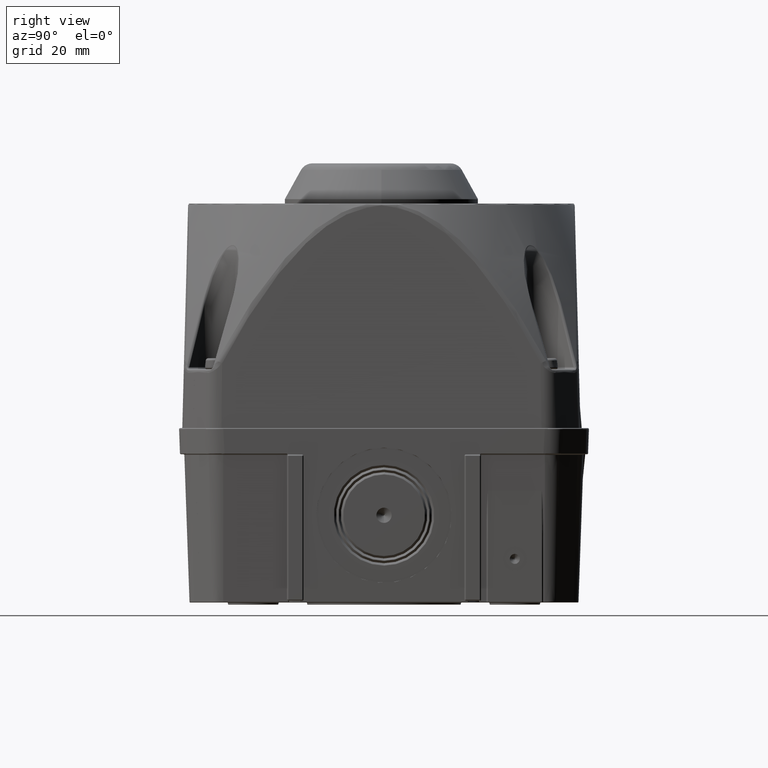
[diagram: clean part render]
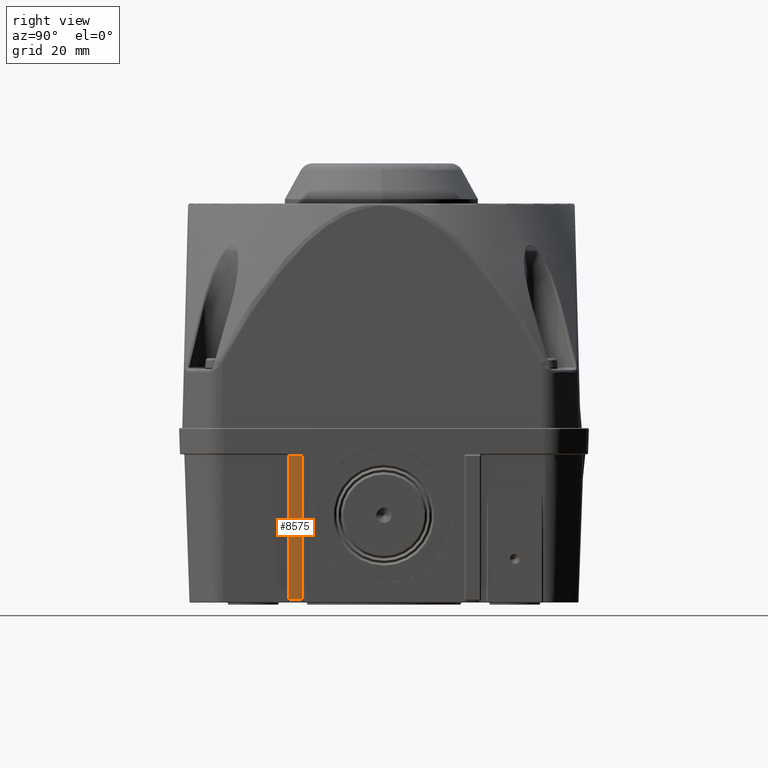
[diagram: same view with one face highlighted and labeled with its STEP entity id]
A machine part, right view. The second image highlights one B-rep face of the part: STEP entity #8575.
In plain terms, the highlighted planar face has unit normal (-1, 0, 0).
Its self-contained STEP definition (entity closure, byte-faithful):
#2738=PLANE('',#33538);
#5581=LINE('',#58940,#7272);
#5582=LINE('',#58943,#7273);
#5583=LINE('',#58945,#7274);
#5584=LINE('',#58947,#7275);
#7272=VECTOR('',#40125,1.);
#7273=VECTOR('',#40126,1.);
#7274=VECTOR('',#40127,1.);
#7275=VECTOR('',#40128,1.);
#8575=ADVANCED_FACE('',(#10680),#2738,.F.);
#10680=FACE_OUTER_BOUND('',#12769,.T.);
#12769=EDGE_LOOP('',(#18803,#18804,#18805,#18806));
#18803=ORIENTED_EDGE('',*,*,#28567,.T.);
#18804=ORIENTED_EDGE('',*,*,#28568,.T.);
#18805=ORIENTED_EDGE('',*,*,#28569,.T.);
#18806=ORIENTED_EDGE('',*,*,#28570,.T.);
#25096=VERTEX_POINT('',#58941);
#25097=VERTEX_POINT('',#58942);
#25098=VERTEX_POINT('',#58944);
#25099=VERTEX_POINT('',#58946);
#28567=EDGE_CURVE('',#25096,#25097,#5581,.T.);
#28568=EDGE_CURVE('',#25097,#25098,#5582,.T.);
#28569=EDGE_CURVE('',#25098,#25099,#5583,.T.);
#28570=EDGE_CURVE('',#25099,#25096,#5584,.T.);
#33538=AXIS2_PLACEMENT_3D('',#58948,#40129,#40130);
#40125=DIRECTION('',(0.,-1.,2.04085114820801E-016));
#40126=DIRECTION('',(0.,-2.04085114820801E-016,-1.));
#40127=DIRECTION('',(0.,1.,0.));
#40128=DIRECTION('',(0.,2.04085114820801E-016,1.));
#40129=DIRECTION('',(-1.,0.,0.));
#40130=DIRECTION('',(0.,-2.04697370165263E-016,-1.));
#58940=CARTESIAN_POINT('',(47.6,-18.,-86.4));
#58941=CARTESIAN_POINT('',(47.6,-18.2,-86.4));
#58942=CARTESIAN_POINT('',(47.6,-21.3,-86.4));
#58943=CARTESIAN_POINT('',(47.6,-21.3,-120.));
#58944=CARTESIAN_POINT('',(47.6,-21.3,-119.3));
#58945=CARTESIAN_POINT('',(47.6,-18.,-119.3));
#58946=CARTESIAN_POINT('',(47.6,-18.2,-119.3));
#58947=CARTESIAN_POINT('',(47.6,-18.2,-86.2));
#58948=CARTESIAN_POINT('',(47.6,-18.,-120.));